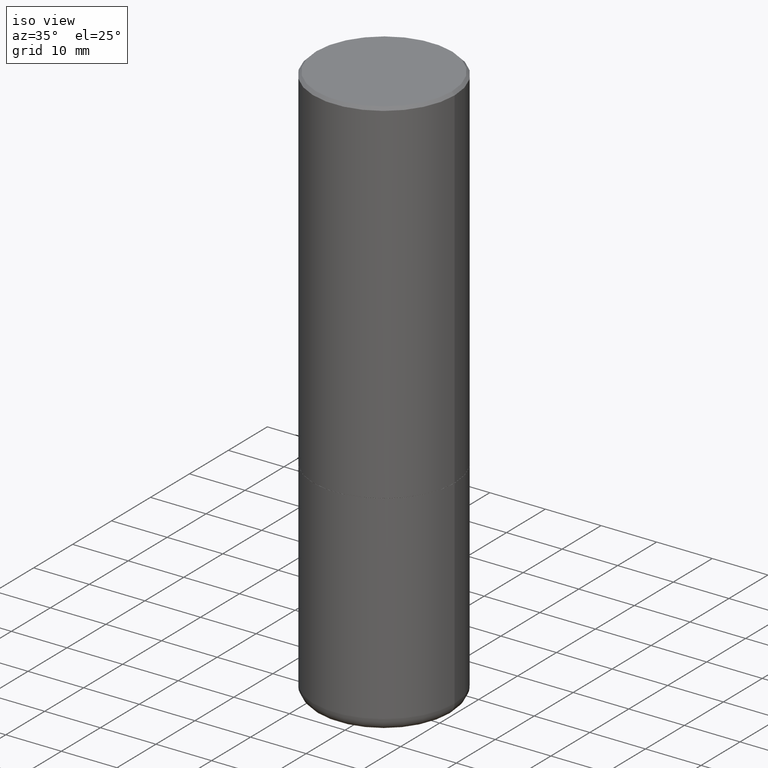
[diagram: clean part render]
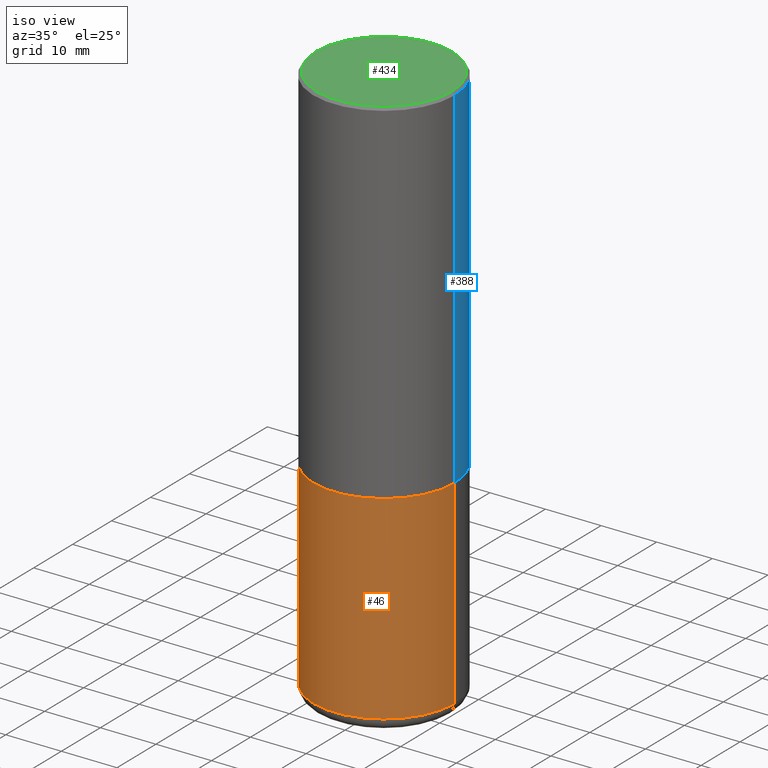
[diagram: same view with three faces highlighted in distinct colors, each labeled with its STEP entity id]
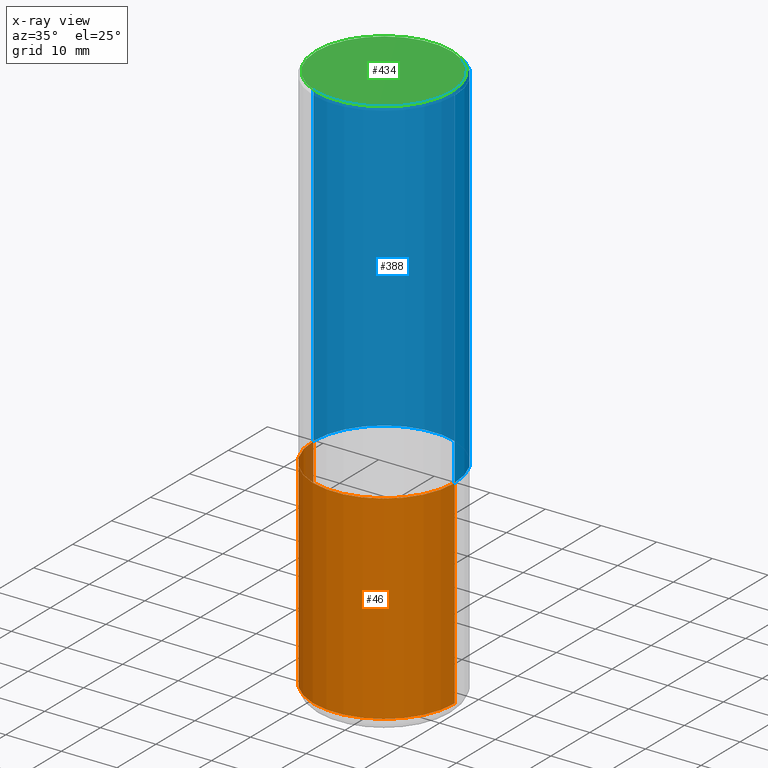
[diagram: x-ray of the same camera — body ghosted, the three highlighted faces saturated]
A machine part, iso view with three faces highlighted in distinct colors.
The next image is the same camera in x-ray (body ghosted, the three faces saturated) — at least one of them is partly hidden behind the body in this view.
Their STEP definitions:

[orange] entity #46 — the highlighted cylindrical surface (partial cylindrical patch) has radius 12.7 mm, axis along (-0, 0, 1).
#5 = CARTESIAN_POINT ( 'NONE',  ( 6.113672015462842613E-29, -8.728703347107864943E-15, -2.500000000000000000 ) ) ;
#6 = ORIENTED_EDGE ( 'NONE', *, *, #290, .F. ) ;
#8 = CIRCLE ( 'NONE', #333, 0.5000000000000000000 ) ;
#10 = DIRECTION ( 'NONE',  ( -2.445468806185136597E-29, 3.491481338843145583E-15, 1.000000000000000000 ) ) ;
#14 = EDGE_CURVE ( 'NONE', #67, #231, #143, .T. ) ;
#34 = CYLINDRICAL_SURFACE ( 'NONE', #349, 0.5000000000000000000 ) ;
#46 = ADVANCED_FACE ( 'NONE', ( #317 ), #34, .T. ) ;
#47 = EDGE_CURVE ( 'NONE', #270, #231, #273, .T. ) ;
#67 = VERTEX_POINT ( 'NONE', #106 ) ;
#106 = CARTESIAN_POINT ( 'NONE',  ( 0.5000000000000000000, -1.714360401956452473E-14, -3.910123341872087988 ) ) ;
#134 = CARTESIAN_POINT ( 'NONE',  ( -0.5000000000000000000, -7.637699335114127230E-15, -3.910123341872087988 ) ) ;
#142 = ORIENTED_EDGE ( 'NONE', *, *, #14, .T. ) ;
#143 = LINE ( 'NONE', #383, #296 ) ;
#168 = ORIENTED_EDGE ( 'NONE', *, *, #47, .F. ) ;
#169 = DIRECTION ( 'NONE',  ( 1.000000000000000000, -6.982962677686266711E-15, 0.000000000000000000 ) ) ;
#231 = VERTEX_POINT ( 'NONE', #426 ) ;
#245 = CARTESIAN_POINT ( 'NONE',  ( 0.000000000000000000, 0.000000000000000000, 0.000000000000000000 ) ) ;
#253 = ORIENTED_EDGE ( 'NONE', *, *, #431, .T. ) ;
#257 = AXIS2_PLACEMENT_3D ( 'NONE', #5, #10, #287 ) ;
#269 = DIRECTION ( 'NONE',  ( -2.445468806185136877E-29, 3.491481338843145188E-15, 1.000000000000000000 ) ) ;
#270 = VERTEX_POINT ( 'NONE', #372 ) ;
#273 = CIRCLE ( 'NONE', #257, 0.5000000000000000000 ) ;
#276 = EDGE_LOOP ( 'NONE', ( #6, #253, #142, #168 ) ) ;
#279 = DIRECTION ( 'NONE',  ( 1.000000000000000000, -6.982962677686266711E-15, 4.876176775795935793E-29 ) ) ;
#284 = VECTOR ( 'NONE', #269, 39.37007874015748143 ) ;
#287 = DIRECTION ( 'NONE',  ( 1.000000000000000000, -6.982962677686269077E-15, 0.000000000000000000 ) ) ;
#290 = EDGE_CURVE ( 'NONE', #433, #270, #298, .T. ) ;
#296 = VECTOR ( 'NONE', #410, 39.37007874015748143 ) ;
#298 = LINE ( 'NONE', #366, #284 ) ;
#317 = FACE_OUTER_BOUND ( 'NONE', #276, .T. ) ;
#333 = AXIS2_PLACEMENT_3D ( 'NONE', #428, #399, #169 ) ;
#348 = DIRECTION ( 'NONE',  ( -2.445468806185136597E-29, 3.491481338843145583E-15, 1.000000000000000000 ) ) ;
#349 = AXIS2_PLACEMENT_3D ( 'NONE', #245, #348, #279 ) ;
#366 = CARTESIAN_POINT ( 'NONE',  ( -0.5000000000000000000, 3.552713678800500929E-15, -2.459467545127452891E-29 ) ) ;
#372 = CARTESIAN_POINT ( 'NONE',  ( -0.5000000000000000000, -7.637699335114127230E-15, -2.500000000000000000 ) ) ;
#383 = CARTESIAN_POINT ( 'NONE',  ( 0.5000000000000000000, -3.491481338843133355E-15, 2.438088387897967896E-29 ) ) ;
#399 = DIRECTION ( 'NONE',  ( -2.445468806185136597E-29, 3.491481338843145583E-15, 1.000000000000000000 ) ) ;
#410 = DIRECTION ( 'NONE',  ( -2.445468806185136877E-29, 3.491481338843145188E-15, 1.000000000000000000 ) ) ;
#426 = CARTESIAN_POINT ( 'NONE',  ( 0.5000000000000000000, -1.222018468595099830E-14, -2.500000000000000000 ) ) ;
#428 = CARTESIAN_POINT ( 'NONE',  ( 9.562084660884571289E-29, -1.365212268072139138E-14, -3.910123341872087988 ) ) ;
#431 = EDGE_CURVE ( 'NONE', #433, #67, #8, .T. ) ;
#433 = VERTEX_POINT ( 'NONE', #134 ) ;

[blue] entity #388 — the highlighted cylindrical surface (partial cylindrical patch) has radius 12.7 mm, axis along (-0, 0, 1).
#16 = AXIS2_PLACEMENT_3D ( 'NONE', #233, #132, #404 ) ;
#23 = ORIENTED_EDGE ( 'NONE', *, *, #232, .T. ) ;
#24 = CARTESIAN_POINT ( 'NONE',  ( -0.4999999999999998335, 3.552713678800499746E-15, -2.459467545127452330E-29 ) ) ;
#45 = EDGE_LOOP ( 'NONE', ( #23, #174, #398, #216 ) ) ;
#63 = DIRECTION ( 'NONE',  ( -2.445468806185136877E-29, 3.491481338843145188E-15, 1.000000000000000000 ) ) ;
#83 = CARTESIAN_POINT ( 'NONE',  ( 0.4999999999999996669, -3.500078625662626318E-15, -0.02000000000000002123 ) ) ;
#87 = DIRECTION ( 'NONE',  ( -2.445468806185136597E-29, 3.491481338843145583E-15, 1.000000000000000000 ) ) ;
#92 = CARTESIAN_POINT ( 'NONE',  ( 0.4999999999999998335, -3.491481338843132566E-15, 2.438088387897967336E-29 ) ) ;
#104 = VERTEX_POINT ( 'NONE', #256 ) ;
#114 = CARTESIAN_POINT ( 'NONE',  ( -0.5000000000000000000, -8.448070674724403070E-16, -2.499000000000000110 ) ) ;
#117 = VECTOR ( 'NONE', #63, 39.37007874015748143 ) ;
#127 = LINE ( 'NONE', #24, #117 ) ;
#132 = DIRECTION ( 'NONE',  ( -2.445468806185136597E-29, 3.491481338843145583E-15, 1.000000000000000000 ) ) ;
#144 = VECTOR ( 'NONE', #374, 39.37007874015748143 ) ;
#148 = CARTESIAN_POINT ( 'NONE',  ( 6.111226546656657010E-29, -8.725211865769021935E-15, -2.499000000000000110 ) ) ;
#174 = ORIENTED_EDGE ( 'NONE', *, *, #293, .T. ) ;
#186 = CIRCLE ( 'NONE', #305, 0.5000000000000000000 ) ;
#193 = VERTEX_POINT ( 'NONE', #83 ) ;
#198 = CYLINDRICAL_SURFACE ( 'NONE', #16, 0.4999999999999998335 ) ;
#216 = ORIENTED_EDGE ( 'NONE', *, *, #315, .F. ) ;
#217 = EDGE_CURVE ( 'NONE', #193, #338, #319, .T. ) ;
#221 = AXIS2_PLACEMENT_3D ( 'NONE', #395, #87, #323 ) ;
#232 = EDGE_CURVE ( 'NONE', #104, #236, #186, .T. ) ;
#233 = CARTESIAN_POINT ( 'NONE',  ( 0.000000000000000000, 0.000000000000000000, 0.000000000000000000 ) ) ;
#236 = VERTEX_POINT ( 'NONE', #114 ) ;
#256 = CARTESIAN_POINT ( 'NONE',  ( 0.5000000000000000000, -1.221669320461215371E-14, -2.499000000000000110 ) ) ;
#288 = DIRECTION ( 'NONE',  ( -2.445468806185136597E-29, 3.491481338843145583E-15, 1.000000000000000000 ) ) ;
#293 = EDGE_CURVE ( 'NONE', #236, #338, #127, .T. ) ;
#305 = AXIS2_PLACEMENT_3D ( 'NONE', #148, #288, #418 ) ;
#315 = EDGE_CURVE ( 'NONE', #104, #193, #376, .T. ) ;
#319 = CIRCLE ( 'NONE', #221, 0.4999999999999996669 ) ;
#323 = DIRECTION ( 'NONE',  ( 1.000000000000000000, -6.982962677686266711E-15, 0.000000000000000000 ) ) ;
#338 = VERTEX_POINT ( 'NONE', #429 ) ;
#374 = DIRECTION ( 'NONE',  ( -2.445468806185136877E-29, 3.491481338843145188E-15, 1.000000000000000000 ) ) ;
#376 = LINE ( 'NONE', #92, #144 ) ;
#388 = ADVANCED_FACE ( 'NONE', ( #435 ), #198, .T. ) ;
#395 = CARTESIAN_POINT ( 'NONE',  ( 4.890937612370278413E-31, -6.982962677686297772E-17, -0.02000000000000002123 ) ) ;
#398 = ORIENTED_EDGE ( 'NONE', *, *, #217, .F. ) ;
#404 = DIRECTION ( 'NONE',  ( 1.000000000000000000, -6.982962677686267499E-15, 4.876176775795936353E-29 ) ) ;
#418 = DIRECTION ( 'NONE',  ( 1.000000000000000000, -6.982962677686265133E-15, 0.000000000000000000 ) ) ;
#429 = CARTESIAN_POINT ( 'NONE',  ( -0.4999999999999996669, 3.421651712066268085E-15, -0.02000000000000002123 ) ) ;
#435 = FACE_OUTER_BOUND ( 'NONE', #45, .T. ) ;

[green] entity #434 — the highlighted planar face has unit normal (0, -0, -1).
#60 = DIRECTION ( 'NONE',  ( 1.000000000000000000, -6.982962677686267499E-15, 4.876036955247132767E-29 ) ) ;
#64 = CIRCLE ( 'NONE', #292, 0.4799999999999996492 ) ;
#75 = EDGE_LOOP ( 'NONE', ( #133, #211 ) ) ;
#91 = AXIS2_PLACEMENT_3D ( 'NONE', #425, #220, #261 ) ;
#96 = CARTESIAN_POINT ( 'NONE',  ( -3.131554243005659264E-46, 4.471029511141341874E-32, 1.280553747030123384E-17 ) ) ;
#97 = DIRECTION ( 'NONE',  ( -1.000000000000000000, 6.982962677686265922E-15, -4.876176775795935793E-29 ) ) ;
#99 = VERTEX_POINT ( 'NONE', #359 ) ;
#125 = FACE_OUTER_BOUND ( 'NONE', #75, .T. ) ;
#129 = CIRCLE ( 'NONE', #91, 0.4799999999999996492 ) ;
#133 = ORIENTED_EDGE ( 'NONE', *, *, #206, .T. ) ;
#206 = EDGE_CURVE ( 'NONE', #380, #99, #129, .T. ) ;
#211 = ORIENTED_EDGE ( 'NONE', *, *, #282, .T. ) ;
#220 = DIRECTION ( 'NONE',  ( -2.445468806185136597E-29, 3.491481338843145583E-15, 1.000000000000000000 ) ) ;
#261 = DIRECTION ( 'NONE',  ( 1.000000000000000000, -6.982962677686267499E-15, 4.876036955247132767E-29 ) ) ;
#271 = DIRECTION ( 'NONE',  ( 2.438088387897960049E-29, -3.491481338843145188E-15, -1.000000000000000000 ) ) ;
#282 = EDGE_CURVE ( 'NONE', #99, #380, #64, .T. ) ;
#292 = AXIS2_PLACEMENT_3D ( 'NONE', #96, #337, #60 ) ;
#337 = DIRECTION ( 'NONE',  ( -2.445468806185136597E-29, 3.491481338843145583E-15, 1.000000000000000000 ) ) ;
#359 = CARTESIAN_POINT ( 'NONE',  ( 0.4799999999999996492, -3.396558832296479338E-15, 1.280553747032483033E-17 ) ) ;
#369 = CARTESIAN_POINT ( 'NONE',  ( 3.351822085289405181E-15, 0.4799999999999996492, -1.669508273909558064E-15 ) ) ;
#380 = VERTEX_POINT ( 'NONE', #402 ) ;
#397 = PLANE ( 'NONE',  #421 ) ;
#402 = CARTESIAN_POINT ( 'NONE',  ( -0.4799999999999996492, 3.386736898677836830E-15, 1.280553747027767124E-17 ) ) ;
#421 = AXIS2_PLACEMENT_3D ( 'NONE', #369, #271, #97 ) ;
#425 = CARTESIAN_POINT ( 'NONE',  ( -3.131554243005659264E-46, 4.471029511141341874E-32, 1.280553747030123384E-17 ) ) ;
#434 = ADVANCED_FACE ( 'NONE', ( #125 ), #397, .F. ) ;